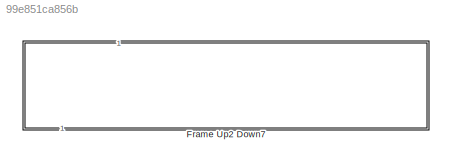
MODEL slx_99e851ca856b
KIND library
CONFIG SolverName = VariableStepAuto
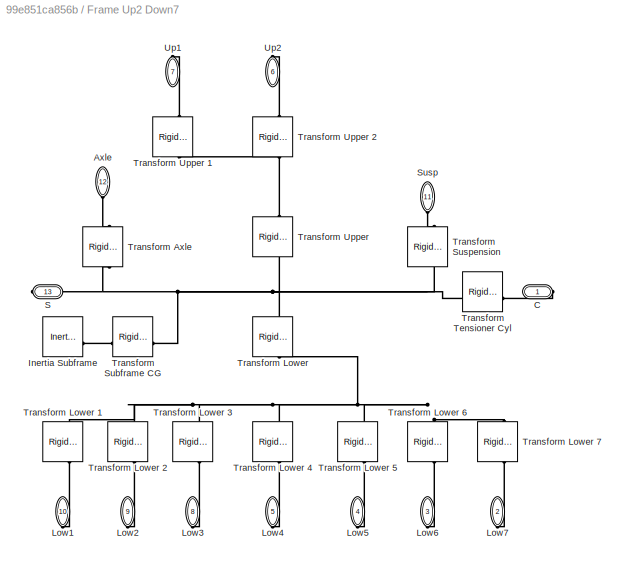
BLOCK [SubSystem] Frame Up2 Down7
  NameLocation = left
BLOCK [PMIOPort] Frame Up2 Down7/Axle
  NameLocation = left
  Port = 12
  Side = Left
BLOCK [PMIOPort] Frame Up2 Down7/C
  Side = Right
BLOCK [Reference] Frame Up2 Down7/Inertia Subframe   REF=sm_lib/Body Elements/Inertia
  SourceBlock = sm_lib/Body Elements/Inertia
  SourceType = Inertia
BLOCK [PMIOPort] Frame Up2 Down7/Low1
  NameLocation = left
  Port = 10
  Side = Right
BLOCK [PMIOPort] Frame Up2 Down7/Low2
  NameLocation = left
  Port = 9
  Side = Right
BLOCK [PMIOPort] Frame Up2 Down7/Low3
  NameLocation = left
  Port = 8
  Side = Right
BLOCK [PMIOPort] Frame Up2 Down7/Low4
  NameLocation = left
  Port = 5
  Side = Right
BLOCK [PMIOPort] Frame Up2 Down7/Low5
  NameLocation = left
  Port = 4
  Side = Right
BLOCK [PMIOPort] Frame Up2 Down7/Low6
  NameLocation = left
  Port = 3
  Side = Right
BLOCK [PMIOPort] Frame Up2 Down7/Low7
  NameLocation = left
  Port = 2
  Side = Right
BLOCK [PMIOPort] Frame Up2 Down7/S
  Port = 13
  Side = Right
BLOCK [PMIOPort] Frame Up2 Down7/Susp
  NameLocation = right
  Port = 11
  Side = Left
BLOCK [Reference] Frame Up2 Down7/Transform Axle  REF=sm_lib/Frames and
Transforms/Rigid
Transform
  NameLocation = left
  SourceBlock = sm_lib/Frames and\nTransforms/Rigid\nTransform
  SourceType = Rigid\nTransform
BLOCK [Reference] Frame Up2 Down7/Transform Lower  REF=sm_lib/Frames and
Transforms/Rigid
Transform
  NameLocation = left
  SourceBlock = sm_lib/Frames and\nTransforms/Rigid\nTransform
  SourceType = Rigid\nTransform
BLOCK [Reference] Frame Up2 Down7/Transform Lower 1  REF=sm_lib/Frames and
Transforms/Rigid
Transform
  SourceBlock = sm_lib/Frames and\nTransforms/Rigid\nTransform
  SourceType = Rigid\nTransform
BLOCK [Reference] Frame Up2 Down7/Transform Lower 2  REF=sm_lib/Frames and
Transforms/Rigid
Transform
  SourceBlock = sm_lib/Frames and\nTransforms/Rigid\nTransform
  SourceType = Rigid\nTransform
BLOCK [Reference] Frame Up2 Down7/Transform Lower 3  REF=sm_lib/Frames and
Transforms/Rigid
Transform
  SourceBlock = sm_lib/Frames and\nTransforms/Rigid\nTransform
  SourceType = Rigid\nTransform
BLOCK [Reference] Frame Up2 Down7/Transform Lower 4  REF=sm_lib/Frames and
Transforms/Rigid
Transform
  SourceBlock = sm_lib/Frames and\nTransforms/Rigid\nTransform
  SourceType = Rigid\nTransform
BLOCK [Reference] Frame Up2 Down7/Transform Lower 5  REF=sm_lib/Frames and
Transforms/Rigid
Transform
  SourceBlock = sm_lib/Frames and\nTransforms/Rigid\nTransform
  SourceType = Rigid\nTransform
BLOCK [Reference] Frame Up2 Down7/Transform Lower 6  REF=sm_lib/Frames and
Transforms/Rigid
Transform
  SourceBlock = sm_lib/Frames and\nTransforms/Rigid\nTransform
  SourceType = Rigid\nTransform
BLOCK [Reference] Frame Up2 Down7/Transform Lower 7  REF=sm_lib/Frames and
Transforms/Rigid
Transform
  SourceBlock = sm_lib/Frames and\nTransforms/Rigid\nTransform
  SourceType = Rigid\nTransform
BLOCK [Reference] Frame Up2 Down7/Transform Subframe CG  REF=sm_lib/Frames and
Transforms/Rigid
Transform
  SourceBlock = sm_lib/Frames and\nTransforms/Rigid\nTransform
  SourceType = Rigid\nTransform
BLOCK [Reference] Frame Up2 Down7/Transform Suspension  REF=sm_lib/Frames and
Transforms/Rigid
Transform
  NameLocation = left
  SourceBlock = sm_lib/Frames and\nTransforms/Rigid\nTransform
  SourceType = Rigid\nTransform
BLOCK [Reference] Frame Up2 Down7/Transform Tensioner Cyl  REF=sm_lib/Frames and
Transforms/Rigid
Transform
  SourceBlock = sm_lib/Frames and\nTransforms/Rigid\nTransform
  SourceType = Rigid\nTransform
BLOCK [Reference] Frame Up2 Down7/Transform Upper  REF=sm_lib/Frames and
Transforms/Rigid
Transform
  NameLocation = left
  SourceBlock = sm_lib/Frames and\nTransforms/Rigid\nTransform
  SourceType = Rigid\nTransform
BLOCK [Reference] Frame Up2 Down7/Transform Upper 1  REF=sm_lib/Frames and
Transforms/Rigid
Transform
  NameLocation = top
  SourceBlock = sm_lib/Frames and\nTransforms/Rigid\nTransform
  SourceType = Rigid\nTransform
BLOCK [Reference] Frame Up2 Down7/Transform Upper 2  REF=sm_lib/Frames and
Transforms/Rigid
Transform
  NameLocation = top
  SourceBlock = sm_lib/Frames and\nTransforms/Rigid\nTransform
  SourceType = Rigid\nTransform
BLOCK [PMIOPort] Frame Up2 Down7/Up1
  NameLocation = right
  Port = 7
  Side = Right
BLOCK [PMIOPort] Frame Up2 Down7/Up2
  NameLocation = right
  Port = 6
  Side = Right
PLINE Frame Up2 Down7/Axle:RConn1 -- Frame Up2 Down7/Transform Axle:RConn1
PLINE Frame Up2 Down7/C:RConn1 -- Frame Up2 Down7/Transform Tensioner Cyl:RConn1
PLINE Frame Up2 Down7/Inertia Subframe :RConn1 -- Frame Up2 Down7/Transform Subframe CG:RConn1
PLINE Frame Up2 Down7/Low1:RConn1 -- Frame Up2 Down7/Transform Lower 1:RConn1
PLINE Frame Up2 Down7/Low2:RConn1 -- Frame Up2 Down7/Transform Lower 2:RConn1
PLINE Frame Up2 Down7/Low3:RConn1 -- Frame Up2 Down7/Transform Lower 3:RConn1
PLINE Frame Up2 Down7/Low4:RConn1 -- Frame Up2 Down7/Transform Lower 4:RConn1
PLINE Frame Up2 Down7/Low5:RConn1 -- Frame Up2 Down7/Transform Lower 5:RConn1
PLINE Frame Up2 Down7/Low6:RConn1 -- Frame Up2 Down7/Transform Lower 6:RConn1
PLINE Frame Up2 Down7/Low7:RConn1 -- Frame Up2 Down7/Transform Lower 7:RConn1
PNET net1: Frame Up2 Down7/S:RConn1 -- Frame Up2 Down7/Transform Axle:LConn1 -- Frame Up2 Down7/Transform Lower:LConn1 -- Frame Up2 Down7/Transform Subframe CG:LConn1 -- Frame Up2 Down7/Transform Suspension:LConn1 -- Frame Up2 Down7/Transform Tensioner Cyl:LConn1 -- Frame Up2 Down7/Transform Upper:LConn1
PLINE Frame Up2 Down7/Susp:RConn1 -- Frame Up2 Down7/Transform Suspension:RConn1
PNET net2: Frame Up2 Down7/Transform Lower 1:LConn1 -- Frame Up2 Down7/Transform Lower 2:LConn1 -- Frame Up2 Down7/Transform Lower 3:LConn1 -- Frame Up2 Down7/Transform Lower 4:LConn1 -- Frame Up2 Down7/Transform Lower 5:LConn1 -- Frame Up2 Down7/Transform Lower 6:LConn1 -- Frame Up2 Down7/Transform Lower 7:LConn1 -- Frame Up2 Down7/Transform Lower:RConn1
PNET net3: Frame Up2 Down7/Transform Upper 1:LConn1 -- Frame Up2 Down7/Transform Upper 2:LConn1 -- Frame Up2 Down7/Transform Upper:RConn1
PLINE Frame Up2 Down7/Transform Upper 1:RConn1 -- Frame Up2 Down7/Up1:RConn1
PLINE Frame Up2 Down7/Transform Upper 2:RConn1 -- Frame Up2 Down7/Up2:RConn1
note: PNET lines group multi-terminal physical nets as a canonical sorted terminal list (undirected conserving connections); 2-terminal nets keep the pairwise PLINE form
